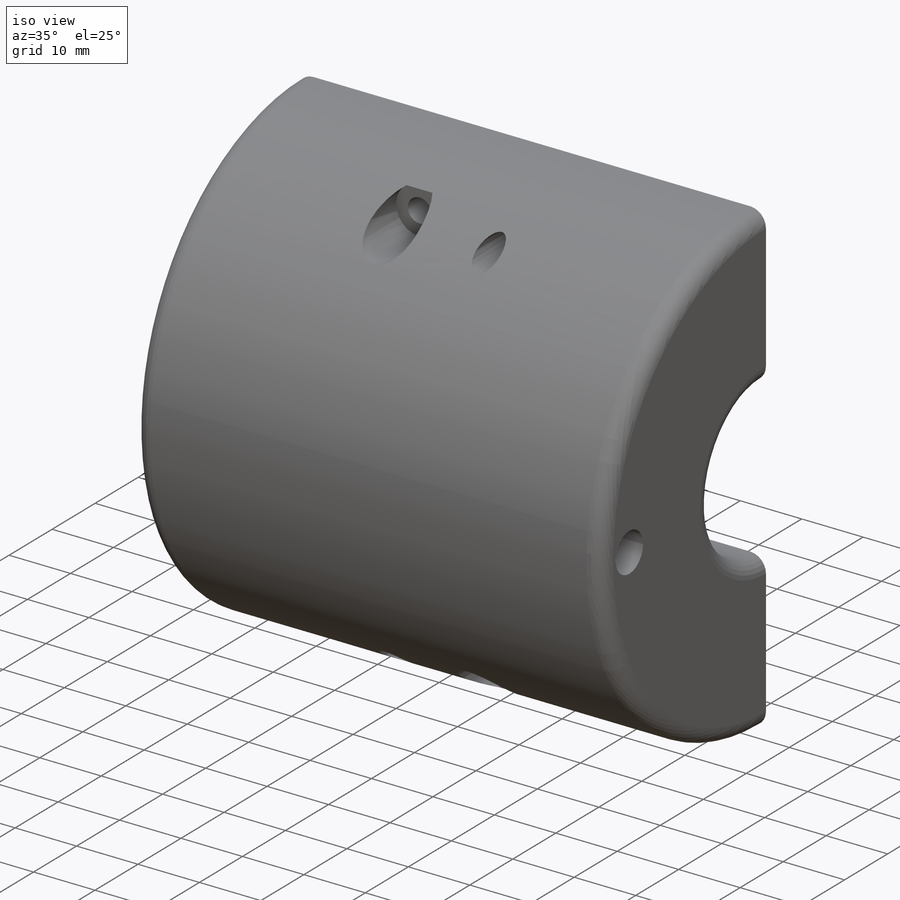
[diagram: iso view]
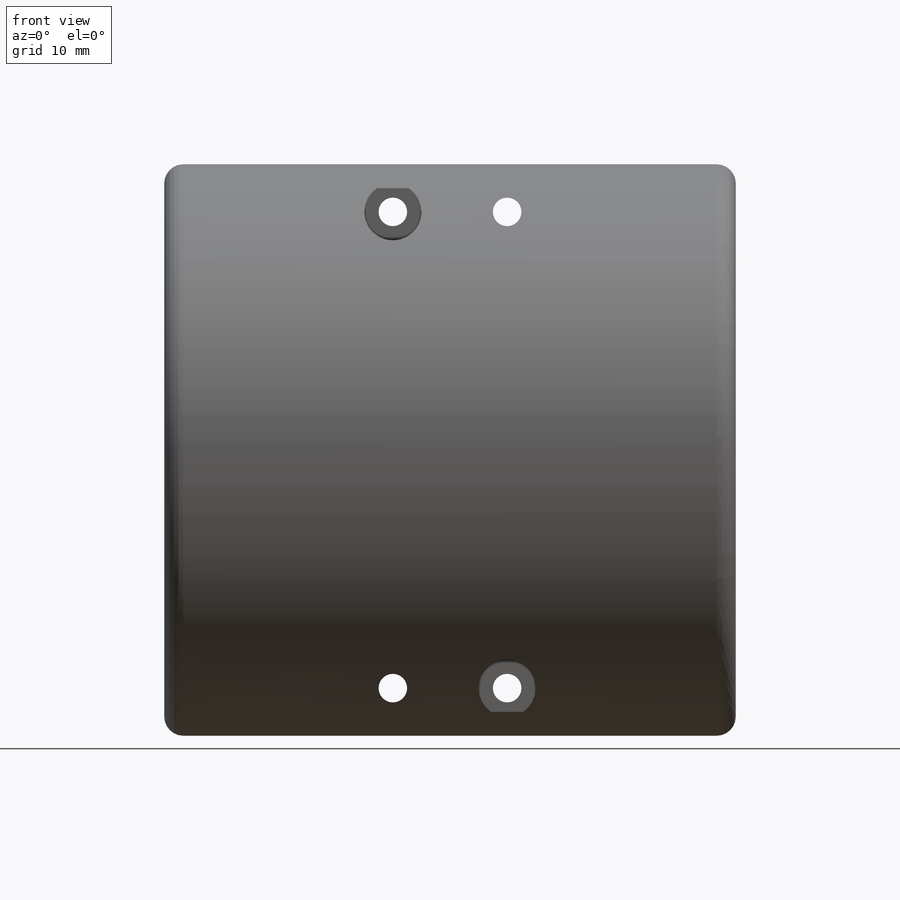
[diagram: front view]
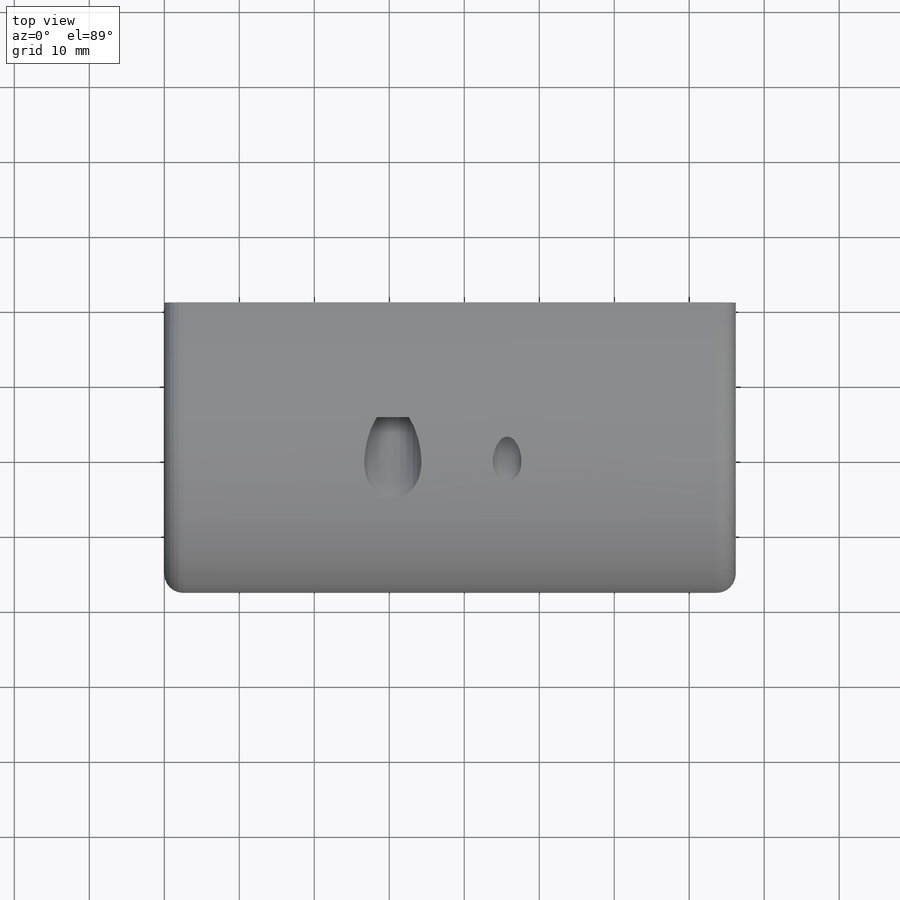
[diagram: top view]
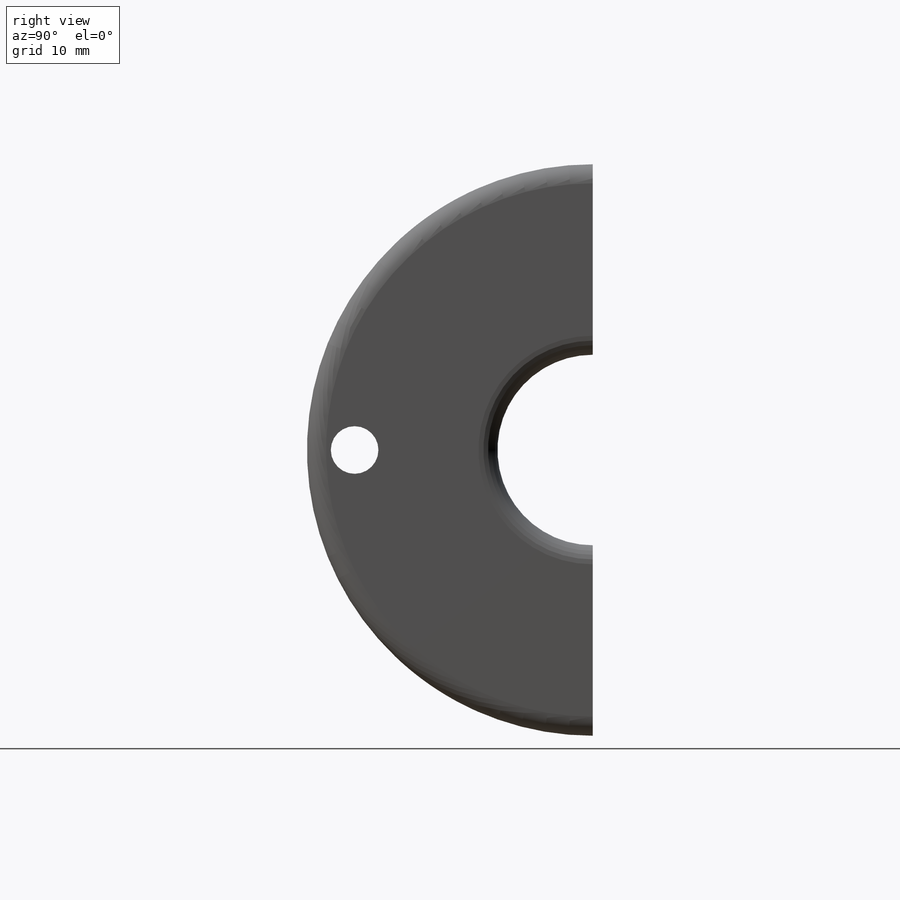
[diagram: right view]
SOLIDWORKS PART (.sldprt)
format: sldprt  version: not decoded by parser v0  size: 340,992 bytes
history: native  units: mm
features: sketch x9, cut_extrude x6, extrude x3, fillet x3, plane x2, material x1 (+13 scaffold rows collapsed)
feature tree (37):
  scaffold x13  (default folders/planes/origin — collapsed)
  material  "Material <not specified>"
  sketch  "Sketch1"  dims[D1=76.2mm]
  extrude  "Boss-Extrude1"  Depth=25.4mm
  sketch  "Sketch2"  dims[D1=50.8mm]
  extrude  "Boss-Extrude2"  Depth=25.4mm
  sketch  "Sketch3"
  extrude  "Boss-Extrude3"  Depth=25.4mm
  sketch  "Sketch4"  dims[D1=25.4mm]
  cut_extrude  "Cut-Extrude1"  [1 undecoded]
  fillet  "Fillet1"  Radius=2.54mm
  sketch  "Sketch6"  dims[D2=3.81mm D1=15.24mm]
  cut_extrude  "Cut-Extrude2"  Depth=25.4mm
  plane  "Plane1"  Offset=15.24mm
  sketch  "Sketch7"  dims[D1=7.62mm]
  cut_extrude  "Cut-Extrude3"  Depth=25.4mm
  plane  "Plane2"  Offset=15.24mm
  sketch  "Sketch8"
  cut_extrude  "Cut-Extrude4"  Depth=25.4mm
  sketch  "Sketch9"  dims[D1=50.8mm]
  cut_extrude  "Cut-Extrude5"  [1 undecoded]
  fillet  "Fillet2"  Radius=2.54mm
  sketch  "Sketch10"  dims[D1=63.5mm D2=6.35mm]
  cut_extrude  "Cut-Extrude6"  [1 undecoded]
  fillet  "Fillet3"  Radius=2.54mm
decode coverage: 16 of 21 modeling features carry decoded parameters
note: 3 parameter values undecoded
summary: no parameter record found for 3 features
note: suppression state not decoded; provenance and decode notes live in map.json
